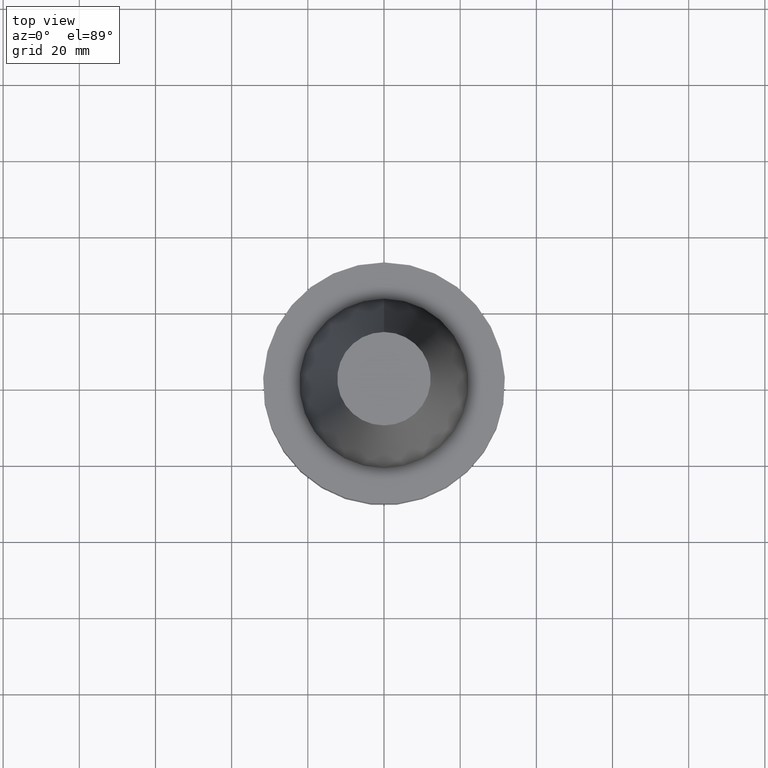
[diagram: clean part render]
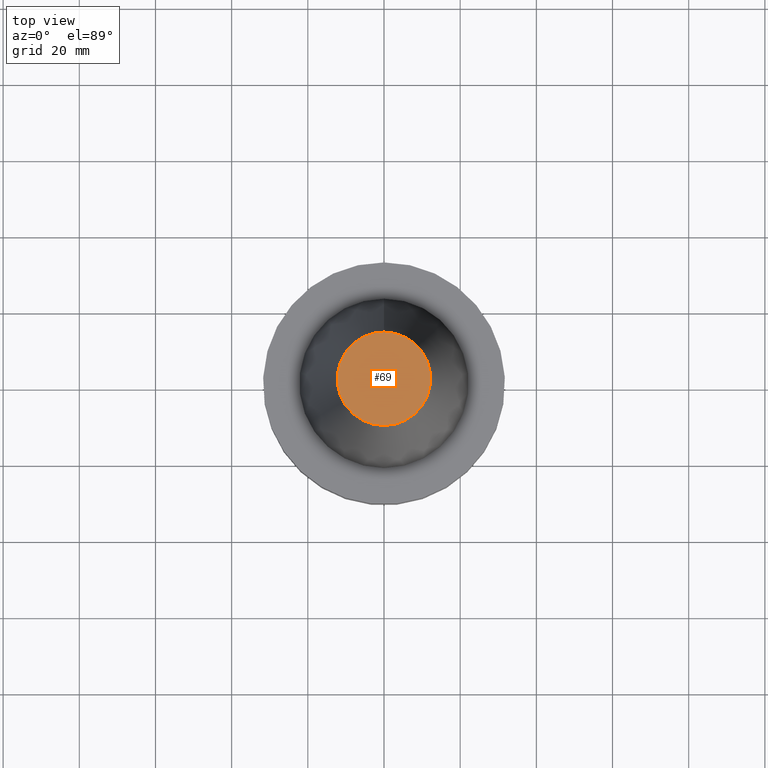
[diagram: same view with one face highlighted and labeled with its STEP entity id]
A machine part, top view. The second image highlights one B-rep face of the part: STEP entity #69.
In plain terms, the highlighted planar face has unit normal (-0, -0, 1).
Its self-contained STEP definition (entity closure, byte-faithful):
#69=ADVANCED_FACE('Unnamed[1]',(#169),#170,.T.);
#121=EDGE_CURVE('Unnamed[1]',#250,#250,#251,.T.);
#169=FACE_OUTER_BOUND('',#300,.T.);
#170=PLANE('',#301);
#250=VERTEX_POINT('',#400);
#251=CIRCLE('',#401,12.2718750014769);
#300=EDGE_LOOP('',(#442));
#301=AXIS2_PLACEMENT_3D('',#443,#444,#445);
#400=CARTESIAN_POINT('',(-4.17910720209034E-015,12.2718750014769,68.25));
#401=AXIS2_PLACEMENT_3D('',#533,#534,#535);
#442=ORIENTED_EDGE('',*,*,#121,.F.);
#443=CARTESIAN_POINT('',(-4.17910720209034E-015,6.13593750073843,68.25));
#444=DIRECTION('',(-6.12323399573677E-017,-1.22464679914735E-016,1.0));
#445=DIRECTION('',(1.23259516440783E-032,-1.0,-1.22464679914735E-016));
#533=CARTESIAN_POINT('',(-4.17910720209034E-015,-8.35821440418068E-015,68.25));
#534=DIRECTION('',(6.12323399573677E-017,1.22464679914735E-016,-1.0));
#535=DIRECTION('',(-1.23259516440783E-032,1.0,1.22464679914735E-016));